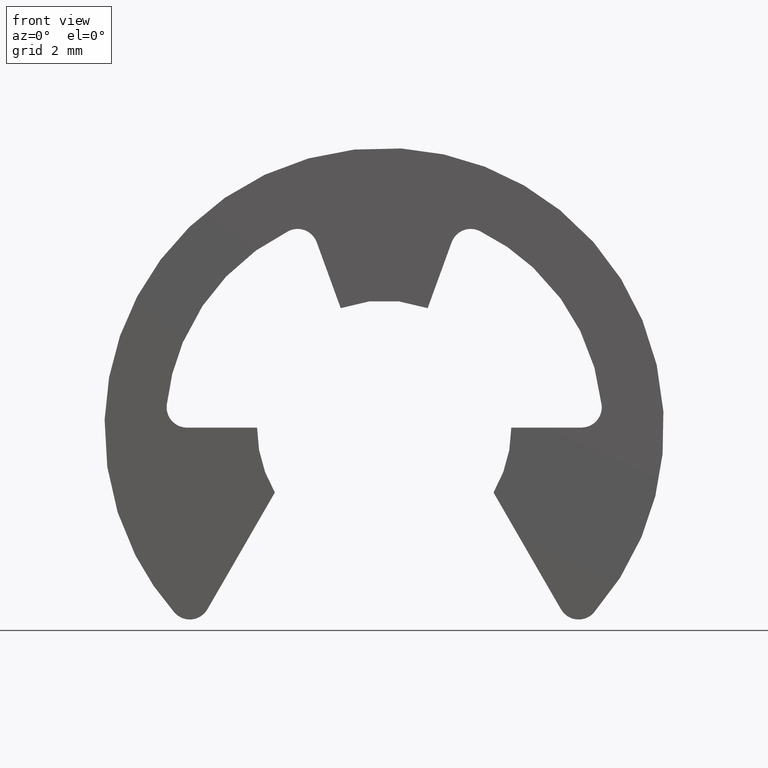
[diagram: clean part render]
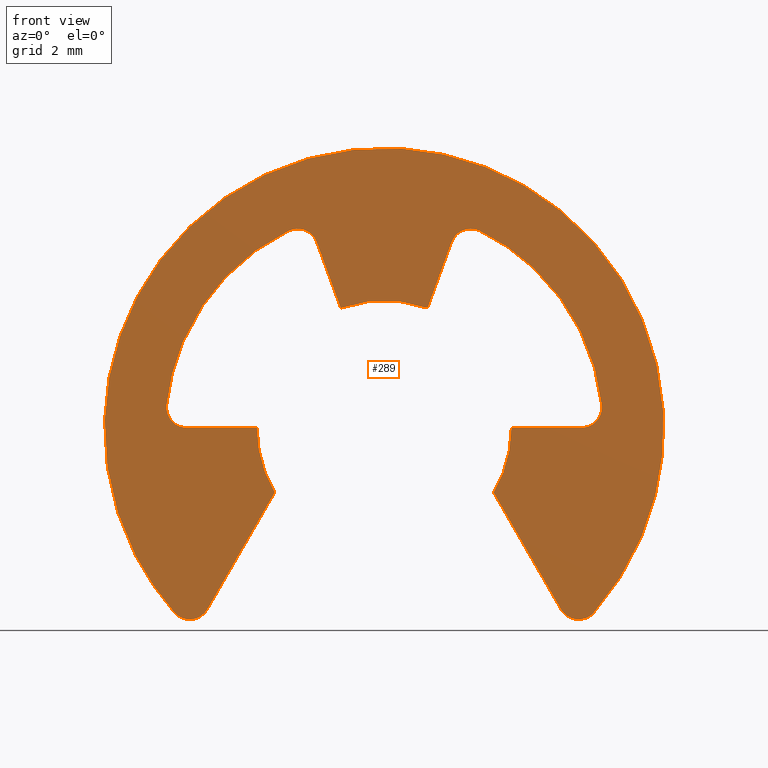
[diagram: same view with one face highlighted and labeled with its STEP entity id]
A machine part, front view. The second image highlights one B-rep face of the part: STEP entity #289.
In plain terms, the highlighted face is a freeform B-spline surface patch.
Its self-contained STEP definition (entity closure, byte-faithful):
#44=CARTESIAN_POINT('',(-6.049443227775925,0.0,5.963273416196367));
#45=CARTESIAN_POINT('',(6.049443589360941,0.0,5.963273416196367));
#46=CARTESIAN_POINT('',(-6.049443227775925,0.0,-4.238017091847224));
#47=CARTESIAN_POINT('',(6.049443589360941,0.0,-4.238017091847224));
#48=B_SPLINE_SURFACE_WITH_KNOTS('',1,1,((#44,#46),(#45,#47)),.UNSPECIFIED.,.F.,.F.,.U.,(2,2),(2,2),(0.0,12.098886817136870),(0.0,10.201290508043590),.UNSPECIFIED.);
#49=CARTESIAN_POINT('',(4.123654509424055,0.0,-3.639433127137615));
#50=VERTEX_POINT('',#49);
#51=CARTESIAN_POINT('',(-4.123653205531125,0.0,-3.639434604511100));
#52=VERTEX_POINT('',#51);
#53=CARTESIAN_POINT('',(4.123654509424050,0.0,-3.639433127137617));
#54=CARTESIAN_POINT('',(7.614998239861816,0.0,0.316428902752809));
#55=CARTESIAN_POINT('',(3.807498437289647,0.0,3.968999326031297));
#56=CARTESIAN_POINT('',(-0.000001365282522,0.0,7.621569749309786));
#57=CARTESIAN_POINT('',(-3.807499859255109,0.0,3.968997961925947));
#58=CARTESIAN_POINT('',(-7.614998353227692,0.0,0.316426174542111));
#59=CARTESIAN_POINT('',(-4.123653205531126,0.0,-3.639434604511100));
#67=(BOUNDED_CURVE()B_SPLINE_CURVE(2,(#53,#54,#55,#56,#57,#58,#59),.UNSPECIFIED.,.F.,.U.)B_SPLINE_CURVE_WITH_KNOTS((3,2,2,3),(0.0,0.333333333333333,0.666666666666667,1.0),.UNSPECIFIED.)CURVE()GEOMETRIC_REPRESENTATION_ITEM()RATIONAL_B_SPLINE_CURVE((1.0,0.721636117087034,1.0,0.721636117087034,1.0,0.721636117087034,1.0))REPRESENTATION_ITEM(''));
#68=EDGE_CURVE('',#50,#52,#67,.T.);
#69=ORIENTED_EDGE('',*,*,#68,.T.);
#70=CARTESIAN_POINT('',(-3.477341278499450,0.0,-3.574748946463711));
#71=VERTEX_POINT('',#70);
#72=CARTESIAN_POINT('',(-4.123653205531123,0.0,-3.639434604511099));
#73=CARTESIAN_POINT('',(-3.987959944759057,0.0,-3.793181548901342));
#74=CARTESIAN_POINT('',(-3.783916458010689,0.0,-3.772760005280417));
#75=CARTESIAN_POINT('',(-3.579872971262322,0.0,-3.752338461659492));
#76=CARTESIAN_POINT('',(-3.477341278499449,0.0,-3.574748946463711));
#84=(BOUNDED_CURVE()B_SPLINE_CURVE(2,(#72,#73,#74,#75,#76),.UNSPECIFIED.,.F.,.U.)B_SPLINE_CURVE_WITH_KNOTS((3,2,3),(0.0,0.500000000000000,1.0),.UNSPECIFIED.)CURVE()GEOMETRIC_REPRESENTATION_ITEM()RATIONAL_B_SPLINE_CURVE((1.0,0.889876466052607,1.0,0.889876466052607,1.0))REPRESENTATION_ITEM(''));
#85=EDGE_CURVE('',#52,#71,#84,.T.);
#86=ORIENTED_EDGE('',*,*,#85,.T.);
#87=CARTESIAN_POINT('',(-2.150000000000000,0.0,-1.275733999999964));
#88=VERTEX_POINT('',#87);
#89=CARTESIAN_POINT('',(-3.477341278499450,0.0,-3.574748946463711));
#90=CARTESIAN_POINT('',(-2.150000000000000,0.0,-1.275733999999964));
#91=QUASI_UNIFORM_CURVE('',1,(#89,#90),.UNSPECIFIED.,.F.,.U.);
#92=EDGE_CURVE('',#71,#88,#91,.T.);
#93=ORIENTED_EDGE('',*,*,#92,.T.);
#94=CARTESIAN_POINT('',(-2.499999999999815,0.0,0.000000959931088));
#95=VERTEX_POINT('',#94);
#96=CARTESIAN_POINT('',(-2.499999999999816,0.0,0.000000959931088));
#97=CARTESIAN_POINT('',(-2.500000263358481,0.0,-0.685878132241590));
#98=CARTESIAN_POINT('',(-2.150000000000000,0.0,-1.275733999999964));
#106=(BOUNDED_CURVE()B_SPLINE_CURVE(2,(#96,#97,#98),.UNSPECIFIED.,.F.,.U.)CURVE()GEOMETRIC_REPRESENTATION_ITEM()QUASI_UNIFORM_CURVE()RATIONAL_B_SPLINE_CURVE((1.0,0.964365074552909,1.0))REPRESENTATION_ITEM(''));
#107=EDGE_CURVE('',#95,#88,#106,.T.);
#108=ORIENTED_EDGE('',*,*,#107,.F.);
#109=CARTESIAN_POINT('',(-3.879433000000055,0.0,0.0));
#110=VERTEX_POINT('',#109);
#111=CARTESIAN_POINT('',(-2.499999999999815,0.0,0.000000959931088));
#112=CARTESIAN_POINT('',(-3.879433000000055,0.0,0.0));
#113=QUASI_UNIFORM_CURVE('',1,(#111,#112),.UNSPECIFIED.,.F.,.U.);
#114=EDGE_CURVE('',#95,#110,#113,.T.);
#115=ORIENTED_EDGE('',*,*,#114,.T.);
#116=CARTESIAN_POINT('',(-4.277323619757000,0.0,0.441027049779827));
#117=VERTEX_POINT('',#116);
#118=CARTESIAN_POINT('',(-4.277323619757000,0.0,0.441027049779827));
#119=CARTESIAN_POINT('',(-4.295564864633802,0.0,0.264109855887720));
#120=CARTESIAN_POINT('',(-4.176426282678241,0.0,0.132055128518400));
#121=CARTESIAN_POINT('',(-4.057287700722681,0.0,0.000000401149081));
#122=CARTESIAN_POINT('',(-3.879433000000055,0.0,0.0));
#130=(BOUNDED_CURVE()B_SPLINE_CURVE(2,(#118,#119,#120,#121,#122),.UNSPECIFIED.,.F.,.U.)B_SPLINE_CURVE_WITH_KNOTS((3,2,3),(0.0,0.500000000000000,1.0),.UNSPECIFIED.)CURVE()GEOMETRIC_REPRESENTATION_ITEM()RATIONAL_B_SPLINE_CURVE((1.0,0.913746321115442,1.0,0.913746321115442,1.0))REPRESENTATION_ITEM(''));
#131=EDGE_CURVE('',#117,#110,#130,.T.);
#132=ORIENTED_EDGE('',*,*,#131,.F.);
#133=CARTESIAN_POINT('',(-1.877360747905205,0.0,3.868528999791110));
#134=VERTEX_POINT('',#133);
#135=CARTESIAN_POINT('',(-1.877360747905204,0.0,3.868528999791111));
#136=CARTESIAN_POINT('',(-4.031718396501105,0.0,2.823039490305286));
#137=CARTESIAN_POINT('',(-4.277323619757000,0.0,0.441027049779827));
#145=(BOUNDED_CURVE()B_SPLINE_CURVE(2,(#135,#136,#137),.UNSPECIFIED.,.F.,.U.)CURVE()GEOMETRIC_REPRESENTATION_ITEM()QUASI_UNIFORM_CURVE()RATIONAL_B_SPLINE_CURVE((1.0,0.873660681245324,1.0))REPRESENTATION_ITEM(''));
#146=EDGE_CURVE('',#134,#117,#145,.T.);
#147=ORIENTED_EDGE('',*,*,#146,.F.);
#148=CARTESIAN_POINT('',(-1.326844242992114,0.0,3.645475857685575));
#149=VERTEX_POINT('',#148);
#150=CARTESIAN_POINT('',(-1.326844242992111,0.0,3.645475857685576));
#151=CARTESIAN_POINT('',(-1.387674671427417,0.0,3.812604978960845));
#152=CARTESIAN_POINT('',(-1.552513541364013,0.0,3.879392935658835));
#153=CARTESIAN_POINT('',(-1.717352411300609,0.0,3.946180892356825));
#154=CARTESIAN_POINT('',(-1.877360747905205,0.0,3.868528999791110));
#162=(BOUNDED_CURVE()B_SPLINE_CURVE(2,(#150,#151,#152,#153,#154),.UNSPECIFIED.,.F.,.U.)B_SPLINE_CURVE_WITH_KNOTS((3,2,3),(0.0,0.500000000000000,1.0),.UNSPECIFIED.)CURVE()GEOMETRIC_REPRESENTATION_ITEM()RATIONAL_B_SPLINE_CURVE((1.0,0.913745869009801,1.0,0.913745869009801,1.0))REPRESENTATION_ITEM(''));
#163=EDGE_CURVE('',#149,#134,#162,.T.);
#164=ORIENTED_EDGE('',*,*,#163,.F.);
#165=CARTESIAN_POINT('',(-0.855049000000000,0.0,2.349236000000000));
#166=VERTEX_POINT('',#165);
#167=CARTESIAN_POINT('',(-1.326844242992114,0.0,3.645475857685575));
#168=CARTESIAN_POINT('',(-0.855049000000000,0.0,2.349236000000000));
#169=QUASI_UNIFORM_CURVE('',1,(#167,#168),.UNSPECIFIED.,.F.,.U.);
#170=EDGE_CURVE('',#149,#166,#169,.T.);
#171=ORIENTED_EDGE('',*,*,#170,.T.);
#172=CARTESIAN_POINT('',(0.855049251264791,0.0,2.349231954897500));
#173=VERTEX_POINT('',#172);
#174=CARTESIAN_POINT('',(0.855049251264791,0.0,2.349231954897500));
#175=CARTESIAN_POINT('',(0.000000226440876,0.0,2.660445406799210));
#176=CARTESIAN_POINT('',(-0.855049000000000,0.0,2.349236000000000));
#184=(BOUNDED_CURVE()B_SPLINE_CURVE(2,(#174,#175,#176),.UNSPECIFIED.,.F.,.U.)CURVE()GEOMETRIC_REPRESENTATION_ITEM()QUASI_UNIFORM_CURVE()RATIONAL_B_SPLINE_CURVE((1.0,0.939692892746932,1.0))REPRESENTATION_ITEM(''));
#185=EDGE_CURVE('',#173,#166,#184,.T.);
#186=ORIENTED_EDGE('',*,*,#185,.F.);
#187=CARTESIAN_POINT('',(1.326843000000060,0.0,3.645477000000000));
#188=VERTEX_POINT('',#187);
#189=CARTESIAN_POINT('',(0.855049251264791,0.0,2.349231954897500));
#190=CARTESIAN_POINT('',(1.326843000000060,0.0,3.645477000000000));
#191=QUASI_UNIFORM_CURVE('',1,(#189,#190),.UNSPECIFIED.,.F.,.U.);
#192=EDGE_CURVE('',#173,#188,#191,.T.);
#193=ORIENTED_EDGE('',*,*,#192,.T.);
#194=CARTESIAN_POINT('',(1.877359611078365,0.0,3.868529967698270));
#195=VERTEX_POINT('',#194);
#196=CARTESIAN_POINT('',(1.877359611078365,0.0,3.868529967698270));
#197=CARTESIAN_POINT('',(1.717351100605900,0.0,3.946180778456449));
#198=CARTESIAN_POINT('',(1.552512439643795,0.0,3.879393052565692));
#199=CARTESIAN_POINT('',(1.387673778681691,0.0,3.812605326674935));
#200=CARTESIAN_POINT('',(1.326843000000060,0.0,3.645477000000000));
#208=(BOUNDED_CURVE()B_SPLINE_CURVE(2,(#196,#197,#198,#199,#200),.UNSPECIFIED.,.F.,.U.)B_SPLINE_CURVE_WITH_KNOTS((3,2,3),(0.0,0.500000000000000,1.0),.UNSPECIFIED.)CURVE()GEOMETRIC_REPRESENTATION_ITEM()RATIONAL_B_SPLINE_CURVE((1.0,0.913746400642459,1.0,0.913746400642459,1.0))REPRESENTATION_ITEM(''));
#209=EDGE_CURVE('',#195,#188,#208,.T.);
#210=ORIENTED_EDGE('',*,*,#209,.F.);
#211=CARTESIAN_POINT('',(4.277323608182579,0.0,0.441024660176670));
#212=VERTEX_POINT('',#211);
#213=CARTESIAN_POINT('',(4.277323608182581,0.0,0.441024660176667));
#214=CARTESIAN_POINT('',(4.031719699543820,0.0,2.823039752624478));
#215=CARTESIAN_POINT('',(1.877359611078365,0.0,3.868529967698270));
#223=(BOUNDED_CURVE()B_SPLINE_CURVE(2,(#213,#214,#215),.UNSPECIFIED.,.F.,.U.)CURVE()GEOMETRIC_REPRESENTATION_ITEM()QUASI_UNIFORM_CURVE()RATIONAL_B_SPLINE_CURVE((1.0,0.873660465067616,1.0))REPRESENTATION_ITEM(''));
#224=EDGE_CURVE('',#212,#195,#223,.T.);
#225=ORIENTED_EDGE('',*,*,#224,.F.);
#226=CARTESIAN_POINT('',(3.879433125663770,0.0,0.000002000000027));
#227=VERTEX_POINT('',#226);
#228=CARTESIAN_POINT('',(3.879433125663770,0.0,0.000002000000028));
#229=CARTESIAN_POINT('',(4.057287077380157,0.0,0.000002055874494));
#230=CARTESIAN_POINT('',(4.176425529028260,0.0,0.132055293169272));
#231=CARTESIAN_POINT('',(4.295563980676364,0.0,0.264108530464050));
#232=CARTESIAN_POINT('',(4.277323608182579,0.0,0.441024660176670));
#240=(BOUNDED_CURVE()B_SPLINE_CURVE(2,(#228,#229,#230,#231,#232),.UNSPECIFIED.,.F.,.U.)B_SPLINE_CURVE_WITH_KNOTS((3,2,3),(0.0,0.500000000000000,1.0),.UNSPECIFIED.)CURVE()GEOMETRIC_REPRESENTATION_ITEM()RATIONAL_B_SPLINE_CURVE((1.0,0.913746956310715,1.0,0.913746956310715,1.0))REPRESENTATION_ITEM(''));
#241=EDGE_CURVE('',#227,#212,#240,.T.);
#242=ORIENTED_EDGE('',*,*,#241,.F.);
#243=CARTESIAN_POINT('',(2.500000000000000,0.0,0.0));
#244=VERTEX_POINT('',#243);
#245=CARTESIAN_POINT('',(3.879433125663770,0.0,0.000002000000027));
#246=CARTESIAN_POINT('',(2.500000000000000,0.0,0.0));
#247=QUASI_UNIFORM_CURVE('',1,(#245,#246),.UNSPECIFIED.,.F.,.U.);
#248=EDGE_CURVE('',#227,#244,#247,.T.);
#249=ORIENTED_EDGE('',*,*,#248,.T.);
#250=CARTESIAN_POINT('',(2.150001694623630,0.0,-1.275732226258912));
#251=VERTEX_POINT('',#250);
#252=CARTESIAN_POINT('',(2.150001694623630,0.0,-1.275732226258912));
#253=CARTESIAN_POINT('',(2.500000000000000,0.0,-0.685877291041595));
#254=CARTESIAN_POINT('',(2.500000000000000,0.0,0.0));
#262=(BOUNDED_CURVE()B_SPLINE_CURVE(2,(#252,#253,#254),.UNSPECIFIED.,.F.,.U.)CURVE()GEOMETRIC_REPRESENTATION_ITEM()QUASI_UNIFORM_CURVE()RATIONAL_B_SPLINE_CURVE((1.0,0.964365251823564,1.0))REPRESENTATION_ITEM(''));
#263=EDGE_CURVE('',#251,#244,#262,.T.);
#264=ORIENTED_EDGE('',*,*,#263,.F.);
#265=CARTESIAN_POINT('',(3.477342186207930,0.0,-3.574747054572700));
#266=VERTEX_POINT('',#265);
#267=CARTESIAN_POINT('',(2.150001694623630,0.0,-1.275732226258912));
#268=CARTESIAN_POINT('',(3.477342186207930,0.0,-3.574747054572700));
#269=QUASI_UNIFORM_CURVE('',1,(#267,#268),.UNSPECIFIED.,.F.,.U.);
#270=EDGE_CURVE('',#251,#266,#269,.T.);
#271=ORIENTED_EDGE('',*,*,#270,.T.);
#272=CARTESIAN_POINT('',(3.477342186207930,0.0,-3.574747054572700));
#273=CARTESIAN_POINT('',(3.579873729143400,0.0,-3.752336928228149));
#274=CARTESIAN_POINT('',(3.783917438515017,0.0,-3.772758612476947));
#275=CARTESIAN_POINT('',(3.987961147886634,0.0,-3.793180296725745));
#276=CARTESIAN_POINT('',(4.123654509424055,0.0,-3.639433127137615));
#284=(BOUNDED_CURVE()B_SPLINE_CURVE(2,(#272,#273,#274,#275,#276),.UNSPECIFIED.,.F.,.U.)B_SPLINE_CURVE_WITH_KNOTS((3,2,3),(0.0,0.500000000000000,1.0),.UNSPECIFIED.)CURVE()GEOMETRIC_REPRESENTATION_ITEM()RATIONAL_B_SPLINE_CURVE((1.0,0.889876253343318,1.0,0.889876253343318,1.0))REPRESENTATION_ITEM(''));
#285=EDGE_CURVE('',#266,#50,#284,.T.);
#286=ORIENTED_EDGE('',*,*,#285,.T.);
#287=EDGE_LOOP('',(#69,#86,#93,#108,#115,#132,#147,#164,#171,#186,#193,#210,#225,#242,#249,#264,#271,#286));
#288=FACE_OUTER_BOUND('',#287,.T.);
#289=ADVANCED_FACE('',(#288),#48,.F.);